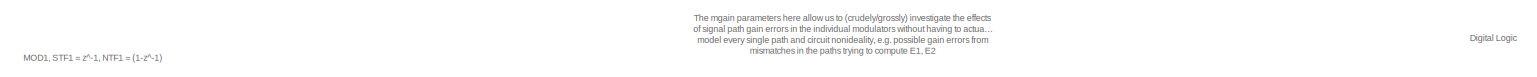
[diagram: root canvas - part 1/3, full width, top band]
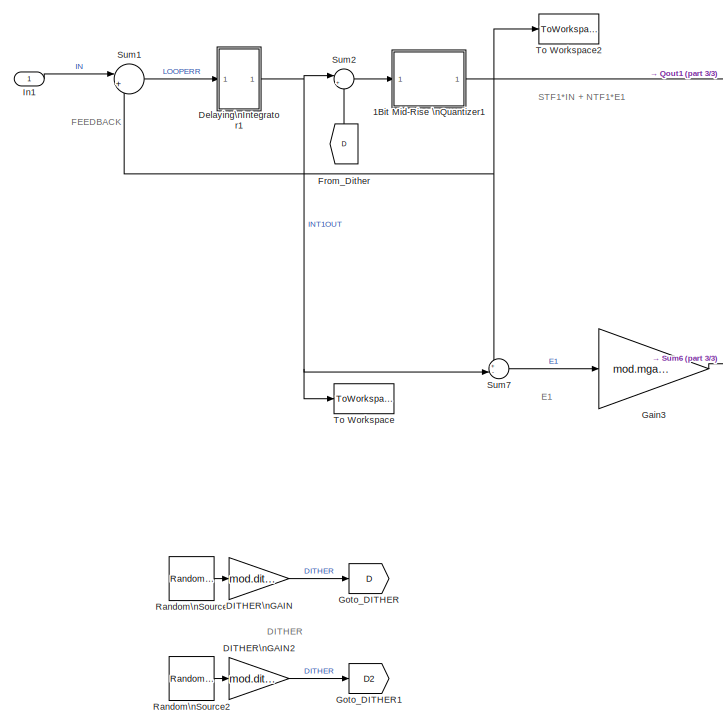
[diagram: root canvas - part 2/3, left side, full height]
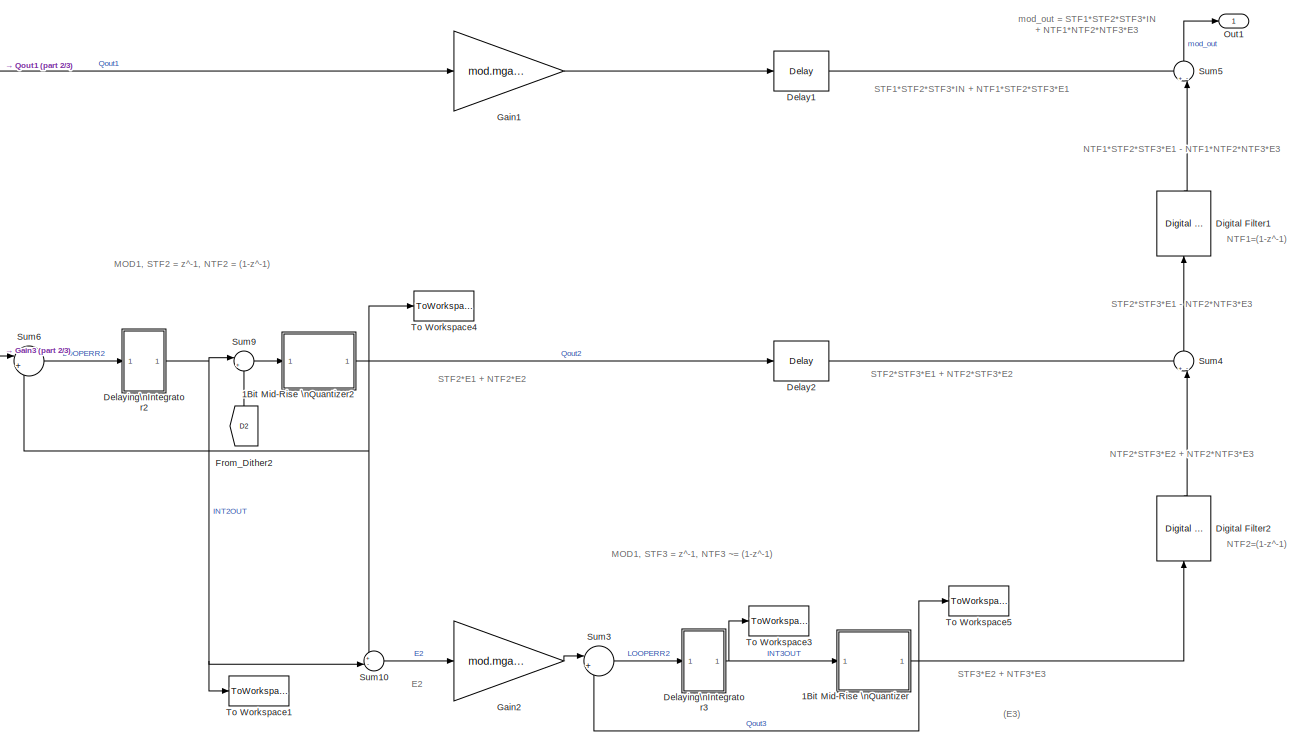
[diagram: root canvas - part 3/3, right side, full height]
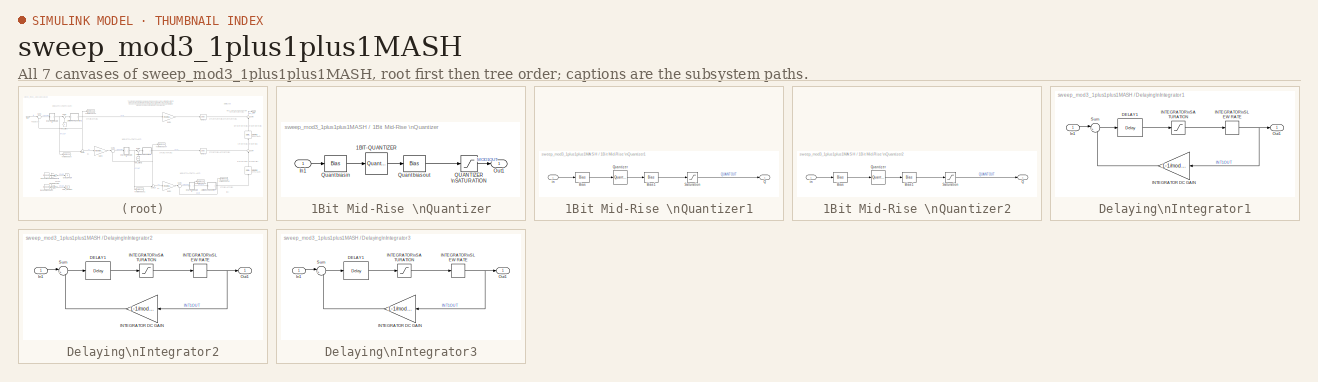
[diagram: thumbnail index - all 7 canvases of the model, root first then tree order]
MODEL sweep_mod3_1plus1plus1MASH
KIND model
BLOCK [SubSystem] 1Bit Mid-Rise \nQuantizer
  FunctionWithSeparateData = off
  MaskHideContents = off
  MinAlgLoopOccurrences = off
  Opaque = off
  Ports = [1, 1]
  PropExecContextOutsideSubsystem = off
  RTWSystemCode = Auto
  RequestExecContextInheritance = off
  SID = 311
BLOCK [Quantizer] 1Bit Mid-Rise \nQuantizer/1BIT-QUANTIZER
  AttributesFormatString = step = 2
  LinearizeAsGain = off
  QuantizationInterval = 2
  SID = 313
  SampleTime = 1/Fs
BLOCK [Inport] 1Bit Mid-Rise \nQuantizer/In1
  IconDisplay = Port number
  SID = 312
BLOCK [Outport] 1Bit Mid-Rise \nQuantizer/Out1
  IconDisplay = Port number
  SID = 317
BLOCK [Saturate] 1Bit Mid-Rise \nQuantizer/QUANTIZER \nSATURATION
  AttributesFormatString = Limit quantizer\\noutput
  InputPortMap = u0
  LowerLimit = -(mod.qsatout3)
  Ports = [1, 1]
  SID = 314
  UpperLimit = mod.qsatout3
BLOCK [Bias] 1Bit Mid-Rise \nQuantizer/Quant bias in
  AttributesFormatString = Need offset to give\\nMID-RISE quantiser
  Bias = 1
  SID = 315
  SaturateOnIntegerOverflow = off
BLOCK [Bias] 1Bit Mid-Rise \nQuantizer/Quant bias out
  AttributesFormatString = Shift outputs to\\n..., -2, 1, 1, ...
  Bias = -1
  SID = 316
  SaturateOnIntegerOverflow = off
BLOCK [SubSystem] 1Bit Mid-Rise \nQuantizer1
  FunctionWithSeparateData = off
  MaskHideContents = off
  MinAlgLoopOccurrences = off
  Opaque = off
  Ports = [1, 1]
  PropExecContextOutsideSubsystem = off
  RTWSystemCode = Auto
  RequestExecContextInheritance = off
  SID = 284
BLOCK [Bias] 1Bit Mid-Rise \nQuantizer1/Bias
  AttributesFormatString = Need offset to give\\nMID-RISE quantiser
  Bias = 1
  SID = 286
  SaturateOnIntegerOverflow = off
BLOCK [Bias] 1Bit Mid-Rise \nQuantizer1/Bias1
  Bias = -1
  SID = 287
  SaturateOnIntegerOverflow = off
BLOCK [Outport] 1Bit Mid-Rise \nQuantizer1/Q
  IconDisplay = Port number
  SID = 290
BLOCK [Quantizer] 1Bit Mid-Rise \nQuantizer1/Quantizer
  LinearizeAsGain = off
  QuantizationInterval = 2
  SID = 288
  SampleTime = 1/Fs
BLOCK [Saturate] 1Bit Mid-Rise \nQuantizer1/Saturation
  InputPortMap = u0
  LowerLimit = -(mod.qsatout1)
  Ports = [1, 1]
  SID = 289
  UpperLimit = mod.qsatout1
BLOCK [Inport] 1Bit Mid-Rise \nQuantizer1/in
  IconDisplay = Port number
  SID = 285
BLOCK [SubSystem] 1Bit Mid-Rise \nQuantizer2
  FunctionWithSeparateData = off
  MaskHideContents = off
  MinAlgLoopOccurrences = off
  Opaque = off
  Ports = [1, 1]
  PropExecContextOutsideSubsystem = off
  RTWSystemCode = Auto
  RequestExecContextInheritance = off
  SID = 291
BLOCK [Bias] 1Bit Mid-Rise \nQuantizer2/Bias
  AttributesFormatString = Need offset to give\\nMID-RISE quantiser
  Bias = 1
  SID = 293
  SaturateOnIntegerOverflow = off
BLOCK [Bias] 1Bit Mid-Rise \nQuantizer2/Bias1
  Bias = -1
  SID = 294
  SaturateOnIntegerOverflow = off
BLOCK [Outport] 1Bit Mid-Rise \nQuantizer2/Q
  IconDisplay = Port number
  SID = 297
BLOCK [Quantizer] 1Bit Mid-Rise \nQuantizer2/Quantizer
  LinearizeAsGain = off
  QuantizationInterval = 2
  SID = 295
  SampleTime = 1/Fs
BLOCK [Saturate] 1Bit Mid-Rise \nQuantizer2/Saturation
  InputPortMap = u0
  LowerLimit = -(mod.qsatout2)
  Ports = [1, 1]
  SID = 296
  UpperLimit = mod.qsatout2
BLOCK [Inport] 1Bit Mid-Rise \nQuantizer2/in
  IconDisplay = Port number
  SID = 292
BLOCK [Gain] DITHER\nGAIN
  Gain = mod.dither
  OutDataTypeStr = Inherit: Inherit via internal rule
  ParamDataTypeStr = Inherit: Inherit via internal rule
  SID = 244
  SampleTime = 1/Fs
  SaturateOnIntegerOverflow = off
BLOCK [Gain] DITHER\nGAIN2
  Gain = mod.dither1
  OutDataTypeStr = Inherit: Inherit via internal rule
  ParamDataTypeStr = Inherit: Inherit via internal rule
  SID = 245
  SampleTime = 1/Fs
  SaturateOnIntegerOverflow = off
BLOCK [Reference] Delay1  REF=dspsigops/Delay
  AttributesFormatString = STF2*STF3
  InputProcessing = Columns as channels (frame based)
  Ports = [1, 1]
  SID = 189
  SourceBlock = dspsigops/Delay
  SourceType = Delay
  UserData = DataTag0
  UserDataPersistent = on
  delay = 2
  dif_ic_for_ch = off
  dif_ic_for_dly = off
  dly_unit = Samples
  ic = 0
  ic_detail = off
  reset_popup = None
BLOCK [Reference] Delay2  REF=dspsigops/Delay
  AttributesFormatString = STF3
  InputProcessing = Columns as channels (frame based)
  Ports = [1, 1]
  SID = 184
  SourceBlock = dspsigops/Delay
  SourceType = Delay
  UserData = DataTag1
  UserDataPersistent = on
  delay = 1
  dif_ic_for_ch = off
  dif_ic_for_dly = off
  dly_unit = Samples
  ic = 0
  ic_detail = off
  reset_popup = None
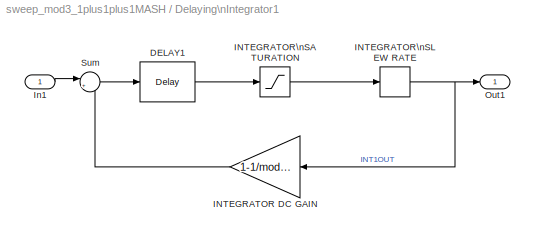
BLOCK [SubSystem] Delaying\nIntegrator1
  FunctionWithSeparateData = off
  MaskHideContents = off
  MinAlgLoopOccurrences = off
  Opaque = off
  Ports = [1, 1]
  PropExecContextOutsideSubsystem = off
  RTWSystemCode = Auto
  RequestExecContextInheritance = off
  SID = 252
BLOCK [Reference] Delaying\nIntegrator1/DELAY1  REF=dspsigops/Delay
  InputProcessing = Inherited (this choice will be removed - see release notes)
  Ports = [1, 1]
  SID = 254
  SourceBlock = dspsigops/Delay
  SourceType = Delay
  UserData = DataTag2
  UserDataPersistent = on
  delay = 1
  dif_ic_for_ch = off
  dif_ic_for_dly = off
  dly_unit = Samples
  ic = 0
  ic_detail = off
  reset_popup = None
BLOCK [Gain] Delaying\nIntegrator1/INTEGRATOR DC GAIN
  AttributesFormatString = Integrator leakage\\n(model finite integrator dc/LF\\ngain in analog modulators)
  Gain = 1-1/mod.igain1
  OutDataTypeStr = Inherit: Inherit via internal rule
  ParamDataTypeStr = Inherit: Inherit via internal rule
  SID = 257
  SaturateOnIntegerOverflow = off
BLOCK [Saturate] Delaying\nIntegrator1/INTEGRATOR\nSATURATION
  AttributesFormatString = Real integrators will have\\noutput swing limits (analog\\nsignal headroom or digital\\naccumulator min/max values)
  InputPortMap = u0
  LowerLimit = -(mod.isat1)
  Ports = [1, 1]
  SID = 255
  UpperLimit = mod.isat1
BLOCK [RateLimiter] Delaying\nIntegrator1/INTEGRATOR\nSLEW RATE
  AttributesFormatString = ...and\\nmay suffer from\\npoor slew rate
  FallingSlewLimit = -(mod.isr1)
  RisingSlewLimit = mod.isr1
  SID = 256
  SampleTimeMode = inherited
BLOCK [Inport] Delaying\nIntegrator1/In1
  IconDisplay = Port number
  SID = 253
BLOCK [Outport] Delaying\nIntegrator1/Out1
  IconDisplay = Port number
  SID = 259
BLOCK [Sum] Delaying\nIntegrator1/Sum
  AttributesFormatString = Integrator\\nsummer
  IconShape = round
  InputSameDT = off
  Inputs = |++
  OutDataTypeStr = Inherit: Inherit via internal rule
  Ports = [2, 1]
  SID = 258
  SaturateOnIntegerOverflow = off
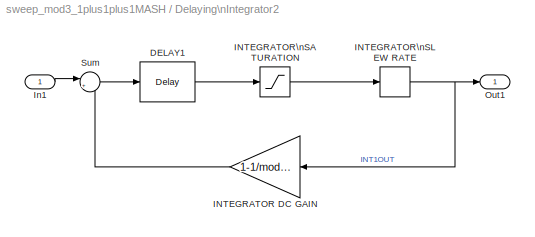
BLOCK [SubSystem] Delaying\nIntegrator2
  FunctionWithSeparateData = off
  MaskHideContents = off
  MinAlgLoopOccurrences = off
  Opaque = off
  Ports = [1, 1]
  PropExecContextOutsideSubsystem = off
  RTWSystemCode = Auto
  RequestExecContextInheritance = off
  SID = 262
BLOCK [Reference] Delaying\nIntegrator2/DELAY1  REF=dspsigops/Delay
  InputProcessing = Inherited (this choice will be removed - see release notes)
  Ports = [1, 1]
  SID = 264
  SourceBlock = dspsigops/Delay
  SourceType = Delay
  UserData = DataTag3
  UserDataPersistent = on
  delay = 1
  dif_ic_for_ch = off
  dif_ic_for_dly = off
  dly_unit = Samples
  ic = 0
  ic_detail = off
  reset_popup = None
BLOCK [Gain] Delaying\nIntegrator2/INTEGRATOR DC GAIN
  AttributesFormatString = Integrator leakage\\n(model finite integrator dc/LF\\ngain in analog modulators)
  Gain = 1-1/mod.igain2
  OutDataTypeStr = Inherit: Inherit via internal rule
  ParamDataTypeStr = Inherit: Inherit via internal rule
  SID = 267
  SaturateOnIntegerOverflow = off
BLOCK [Saturate] Delaying\nIntegrator2/INTEGRATOR\nSATURATION
  AttributesFormatString = Real integrators will have\\noutput swing limits (analog\\nsignal headroom or digital\\naccumulator min/max values)
  InputPortMap = u0
  LowerLimit = -(mod.isat2)
  Ports = [1, 1]
  SID = 265
  UpperLimit = mod.isat2
BLOCK [RateLimiter] Delaying\nIntegrator2/INTEGRATOR\nSLEW RATE
  AttributesFormatString = ...and\\nmay suffer from\\npoor slew rate
  FallingSlewLimit = -(mod.isr2)
  RisingSlewLimit = mod.isr2
  SID = 266
  SampleTimeMode = inherited
BLOCK [Inport] Delaying\nIntegrator2/In1
  IconDisplay = Port number
  SID = 263
BLOCK [Outport] Delaying\nIntegrator2/Out1
  IconDisplay = Port number
  SID = 269
BLOCK [Sum] Delaying\nIntegrator2/Sum
  AttributesFormatString = Integrator\\nsummer
  IconShape = round
  InputSameDT = off
  Inputs = |++
  OutDataTypeStr = Inherit: Inherit via internal rule
  Ports = [2, 1]
  SID = 268
  SaturateOnIntegerOverflow = off
BLOCK [SubSystem] Delaying\nIntegrator3
  FunctionWithSeparateData = off
  MaskHideContents = off
  MinAlgLoopOccurrences = off
  Opaque = off
  Ports = [1, 1]
  PropExecContextOutsideSubsystem = off
  RTWSystemCode = Auto
  RequestExecContextInheritance = off
  SID = 303
BLOCK [Reference] Delaying\nIntegrator3/DELAY1  REF=dspsigops/Delay
  InputProcessing = Inherited (this choice will be removed - see release notes)
  Ports = [1, 1]
  SID = 305
  SourceBlock = dspsigops/Delay
  SourceType = Delay
  UserData = DataTag4
  UserDataPersistent = on
  delay = 1
  dif_ic_for_ch = off
  dif_ic_for_dly = off
  dly_unit = Samples
  ic = 0
  ic_detail = off
  reset_popup = None
BLOCK [Gain] Delaying\nIntegrator3/INTEGRATOR DC GAIN
  AttributesFormatString = Integrator leakage\\n(model finite integrator dc/LF\\ngain in analog modulators)
  Gain = 1-1/mod.igain3
  OutDataTypeStr = Inherit: Inherit via internal rule
  ParamDataTypeStr = Inherit: Inherit via internal rule
  SID = 308
  SaturateOnIntegerOverflow = off
BLOCK [Saturate] Delaying\nIntegrator3/INTEGRATOR\nSATURATION
  AttributesFormatString = Real integrators will have\\noutput swing limits (analog\\nsignal headroom or digital\\naccumulator min/max values)
  InputPortMap = u0
  LowerLimit = -(mod.isat3)
  Ports = [1, 1]
  SID = 306
  UpperLimit = mod.isat3
BLOCK [RateLimiter] Delaying\nIntegrator3/INTEGRATOR\nSLEW RATE
  AttributesFormatString = ...and\\nmay suffer from\\npoor slew rate
  FallingSlewLimit = -(mod.isr3)
  RisingSlewLimit = mod.isr3
  SID = 307
  SampleTimeMode = inherited
BLOCK [Inport] Delaying\nIntegrator3/In1
  IconDisplay = Port number
  SID = 304
BLOCK [Outport] Delaying\nIntegrator3/Out1
  IconDisplay = Port number
  SID = 310
BLOCK [Sum] Delaying\nIntegrator3/Sum
  AttributesFormatString = Integrator\\nsummer
  IconShape = round
  InputSameDT = off
  Inputs = |++
  OutDataTypeStr = Inherit: Inherit via internal rule
  Ports = [2, 1]
  SID = 309
  SaturateOnIntegerOverflow = off
BLOCK [Reference] Digital Filter1  REF=dsparch4/Digital Filter
  AllPoleFiltStruct = Direct form
  BiQuadCoeffs = [1 0.3 0.4 1 0.1 0.2]
  CoeffSource = Specify via dialog
  DenCoeffs = [1 0.1]
  FIRFiltStruct = Direct form
  FiltPerSampPopup = One filter per frame
  FilterSource = Specify via dialog
  IC = 0
  ICden = 0
  ICnum = 0
  IIRFiltStruct = Direct form II transposed
  InputProcessing = Columns as channels (frame based)
  LatticeCoeffs = [0.2 0.4]
  LockScale = off
  NumCoeffs = [1 -1]
  Ports = [1, 1]
  SID = 190
  ScaleValues = 1
  SourceBlock = dsparch4/Digital Filter
  SourceType = Digital Filter
  TypePopup = FIR (all zeros)
  UserData = DataTag5
  UserDataPersistent = on
  accumFracLength = 30
  accumMode = Same as product output
  accumWordLength = 32
  additionalParams = off
  allowOverrides = on
  denIgnore = on
  dfiltObjectName = dfilt.dffir([1 2 1])
  firstCoeffFracLength = 15
  firstCoeffMode = Same word length as input
  firstCoeffWordLength = 16
  memoryFracLength = 15
  memoryMode = Same as accumulator
  memoryWordLength = 16
  multiplicandFracLength = 30
  multiplicandMode = Same as output
  multiplicandWordLength = 32
  outputFracLength = 15
  outputMode = Same as accumulator
  outputWordLength = 16
  overflowMode = off
  prodOutputFracLength = 30
  prodOutputMode = Same as input
  prodOutputWordLength = 32
  roundingMode = Floor
  scaleValueFracLength = 14
  secondCoeffFracLength = 15
  secondCoeffMode = Same as numerator
  secondCoeffWordLength = 16
  showAcc = off
  showCoeff = off
  showMem = off
  showMpy = off
  showOut = off
  stageIOMode = Same as input
  stageIOWordLength = 16
  stageInFracLength = 15
  stageOutFracLength = 15
  tapSumFracLength = 30
  tapSumMode = Same as input
  tapSumWordLength = 32
  thirdCoeffFracLength = 15
  thirdCoeffMode = Same as input
  thirdCoeffWordLength = 16
BLOCK [Reference] Digital Filter2  REF=dsparch4/Digital Filter
  AllPoleFiltStruct = Direct form
  BiQuadCoeffs = [1 0.3 0.4 1 0.1 0.2]
  CoeffSource = Specify via dialog
  DenCoeffs = [1 0.1]
  FIRFiltStruct = Direct form
  FiltPerSampPopup = One filter per frame
  FilterSource = Specify via dialog
  IC = 0
  ICden = 0
  ICnum = 0
  IIRFiltStruct = Direct form II transposed
  InputProcessing = Columns as channels (frame based)
  LatticeCoeffs = [0.2 0.4]
  LockScale = off
  NumCoeffs = [1 -1]
  Ports = [1, 1]
  SID = 183
  ScaleValues = 1
  SourceBlock = dsparch4/Digital Filter
  SourceType = Digital Filter
  TypePopup = FIR (all zeros)
  UserData = DataTag6
  UserDataPersistent = on
  accumFracLength = 30
  accumMode = Same as product output
  accumWordLength = 32
  additionalParams = off
  allowOverrides = on
  denIgnore = on
  dfiltObjectName = dfilt.dffir([1 2 1])
  firstCoeffFracLength = 15
  firstCoeffMode = Same word length as input
  firstCoeffWordLength = 16
  memoryFracLength = 15
  memoryMode = Same as accumulator
  memoryWordLength = 16
  multiplicandFracLength = 30
  multiplicandMode = Same as output
  multiplicandWordLength = 32
  outputFracLength = 15
  outputMode = Same as accumulator
  outputWordLength = 16
  overflowMode = off
  prodOutputFracLength = 30
  prodOutputMode = Same as input
  prodOutputWordLength = 32
  roundingMode = Floor
  scaleValueFracLength = 14
  secondCoeffFracLength = 15
  secondCoeffMode = Same as numerator
  secondCoeffWordLength = 16
  showAcc = off
  showCoeff = off
  showMem = off
  showMpy = off
  showOut = off
  stageIOMode = Same as input
  stageIOWordLength = 16
  stageInFracLength = 15
  stageOutFracLength = 15
  tapSumFracLength = 30
  tapSumMode = Same as input
  tapSumWordLength = 32
  thirdCoeffFracLength = 15
  thirdCoeffMode = Same as input
  thirdCoeffWordLength = 16
BLOCK [From] From_Dither
  GotoTag = D
  SID = 207
BLOCK [From] From_Dither2
  GotoTag = D2
  SID = 208
BLOCK [Gain] Gain1
  Gain = mod.mgain1
  OutDataTypeStr = Inherit: Inherit via internal rule
  ParamDataTypeStr = Inherit: Inherit via internal rule
  SID = 298
  SaturateOnIntegerOverflow = off
BLOCK [Gain] Gain2
  Gain = mod.mgain3
  OutDataTypeStr = Inherit: Inherit via internal rule
  ParamDataTypeStr = Inherit: Inherit via internal rule
  SID = 299
  SaturateOnIntegerOverflow = off
BLOCK [Gain] Gain3
  Gain = mod.mgain2
  OutDataTypeStr = Inherit: Inherit via internal rule
  ParamDataTypeStr = Inherit: Inherit via internal rule
  SID = 217
  SaturateOnIntegerOverflow = off
BLOCK [Goto] Goto_DITHER
  GotoTag = D
  SID = 246
BLOCK [Goto] Goto_DITHER1
  GotoTag = D2
  SID = 247
BLOCK [Inport] In1
  IconDisplay = Port number
  SID = 73
BLOCK [Outport] Out1
  IconDisplay = Port number
  SID = 74
BLOCK [Reference] Random\nSource  REF=dspsrcs4/Random\nSource
  CltLength = 12
  DataType = Double
  IsInherit = off
  MaxVal = 1
  MeanVal = 0
  MinVal = -1
  NormMethod = Ziggurat
  OutComplex = Real
  Ports = [0, 1]
  RepMode = Not repeatable
  SID = 248
  SampFrame = 1
  SampMode = Discrete
  SampTime = 1/Fs
  SourceBlock = dspsrcs4/Random\nSource
  SourceType = Random Source
  SrcType = Uniform
  UserData = DataTag7
  UserDataPersistent = on
  VarVal = 1
  rawSeed = 1
BLOCK [Reference] Random\nSource2  REF=dspsrcs4/Random\nSource
  CltLength = 12
  DataType = Double
  IsInherit = off
  MaxVal = 1
  MeanVal = 0
  MinVal = -1
  NormMethod = Ziggurat
  OutComplex = Real
  Ports = [0, 1]
  RepMode = Not repeatable
  SID = 249
  SampFrame = 1
  SampMode = Discrete
  SampTime = 1/Fs
  SourceBlock = dspsrcs4/Random\nSource
  SourceType = Random Source
  SrcType = Uniform
  UserData = DataTag8
  UserDataPersistent = on
  VarVal = 1
  rawSeed = 1
BLOCK [Sum] Sum1
  IconShape = round
  InputSameDT = off
  Inputs = |+-
  OutDataTypeStr = Inherit: Inherit via internal rule
  Ports = [2, 1]
  SID = 251
  SampleTime = 1/Fs
  SaturateOnIntegerOverflow = off
BLOCK [Sum] Sum10
  IconShape = round
  InputSameDT = off
  Inputs = +-|
  OutDataTypeStr = Inherit: Inherit via internal rule
  Ports = [2, 1]
  SID = 164
  SaturateOnIntegerOverflow = off
BLOCK [Sum] Sum2
  IconShape = round
  InputSameDT = off
  Inputs = |++
  OutDataTypeStr = Inherit: Inherit via internal rule
  Ports = [2, 1]
  SID = 137
  SaturateOnIntegerOverflow = off
BLOCK [Sum] Sum3
  IconShape = round
  InputSameDT = off
  Inputs = |+-
  OutDataTypeStr = Inherit: Inherit via internal rule
  Ports = [2, 1]
  SID = 301
  SaturateOnIntegerOverflow = off
BLOCK [Sum] Sum4
  IconShape = round
  InputSameDT = off
  Inputs = +-|
  OutDataTypeStr = Inherit: Inherit via internal rule
  Ports = [2, 1]
  SID = 185
  SaturateOnIntegerOverflow = off
BLOCK [Sum] Sum5
  IconShape = round
  InputSameDT = off
  Inputs = +-|
  OutDataTypeStr = Inherit: Inherit via internal rule
  Ports = [2, 1]
  SID = 191
  SampleTime = 1/Fs
  SaturateOnIntegerOverflow = off
BLOCK [Sum] Sum6
  IconShape = round
  InputSameDT = off
  Inputs = |+-
  OutDataTypeStr = Inherit: Inherit via internal rule
  Ports = [2, 1]
  SID = 261
  SaturateOnIntegerOverflow = off
BLOCK [Sum] Sum7
  IconShape = round
  InputSameDT = off
  Inputs = +-|
  OutDataTypeStr = Inherit: Inherit via internal rule
  Ports = [2, 1]
  SID = 146
  SaturateOnIntegerOverflow = off
BLOCK [Sum] Sum9
  IconShape = round
  InputSameDT = off
  Inputs = |++
  OutDataTypeStr = Inherit: Inherit via internal rule
  Ports = [2, 1]
  SID = 163
  SaturateOnIntegerOverflow = off
BLOCK [ToWorkspace] To Workspace
  MaxDataPoints = inf
  Ports = [1]
  SID = 219
  SampleTime = -1
  VariableName = INT1OUT
BLOCK [ToWorkspace] To Workspace1
  MaxDataPoints = inf
  Ports = [1]
  SID = 220
  SampleTime = -1
  VariableName = INT2OUT
BLOCK [ToWorkspace] To Workspace2
  MaxDataPoints = inf
  Ports = [1]
  SID = 224
  SampleTime = -1
  VariableName = Qout1
BLOCK [ToWorkspace] To Workspace3
  MaxDataPoints = inf
  Ports = [1]
  SID = 222
  SampleTime = -1
  VariableName = INT3OUT
BLOCK [ToWorkspace] To Workspace4
  MaxDataPoints = inf
  Ports = [1]
  SID = 300
  SampleTime = -1
  VariableName = Qout2
BLOCK [ToWorkspace] To Workspace5
  MaxDataPoints = inf
  Ports = [1]
  SID = 318
  SampleTime = -1
  VariableName = Qout3
ANNOTATION (root): DITHER \n\n\n\n\n\n\n\n\n\n
ANNOTATION (root): (E3)
ANNOTATION (root): Digital Logic
ANNOTATION (root): E1
ANNOTATION (root): E2
ANNOTATION (root): FEEDBACK
ANNOTATION (root): MOD1, STF1 = z^-1, NTF1 = (1-z^-1)
ANNOTATION (root): MOD1, STF2 = z^-1, NTF2 = (1-z^-1)
ANNOTATION (root): MOD1, STF3 = z^-1, NTF3 ~= (1-z^-1)
ANNOTATION (root): NTF1*STF2*STF3*E1 - NTF1*NTF2*NTF3*E3
ANNOTATION (root): NTF1=(1-z^-1)
ANNOTATION (root): NTF2*STF3*E2 + NTF2*NTF3*E3
ANNOTATION (root): NTF2=(1-z^-1)
ANNOTATION (root): STF1*IN + NTF1*E1
ANNOTATION (root): STF1*STF2*STF3*IN + NTF1*STF2*STF3*E1
ANNOTATION (root): STF2*E1 + NTF2*E2
ANNOTATION (root): STF2*STF3*E1 + NTF2*STF3*E2
ANNOTATION (root): STF2*STF3*E1 - NTF2*NTF3*E3
ANNOTATION (root): STF3*E2 + NTF3*E3
ANNOTATION (root): The mgain parameters here allow us to (crudely/grossly) investigate the effects \nof signal path gain errors in the individual modulators without having to actually \nmodel every single path and circuit nonideality, e.g. possible gain errors from \nmismatches in the paths trying to compute E1, E2
ANNOTATION (root): mod_out = STF1*STF2*STF3*IN\n + NTF1*NTF2*NTF3*E3
LINE 1Bit Mid-Rise \nQuantizer/1BIT-QUANTIZER:1 -> 1Bit Mid-Rise \nQuantizer/Quant bias out:1
LINE 1Bit Mid-Rise \nQuantizer/In1:1 -> 1Bit Mid-Rise \nQuantizer/Quant bias in:1
LINE 1Bit Mid-Rise \nQuantizer/QUANTIZER \nSATURATION:1 -> 1Bit Mid-Rise \nQuantizer/Out1:1
LINE 1Bit Mid-Rise \nQuantizer/Quant bias in:1 -> 1Bit Mid-Rise \nQuantizer/1BIT-QUANTIZER:1
LINE 1Bit Mid-Rise \nQuantizer/Quant bias out:1 -> 1Bit Mid-Rise \nQuantizer/QUANTIZER \nSATURATION:1
LINE 1Bit Mid-Rise \nQuantizer1/Bias1:1 -> 1Bit Mid-Rise \nQuantizer1/Saturation:1
LINE 1Bit Mid-Rise \nQuantizer1/Bias:1 -> 1Bit Mid-Rise \nQuantizer1/Quantizer:1
LINE 1Bit Mid-Rise \nQuantizer1/Quantizer:1 -> 1Bit Mid-Rise \nQuantizer1/Bias1:1
LINE 1Bit Mid-Rise \nQuantizer1/Saturation:1 -> 1Bit Mid-Rise \nQuantizer1/Q:1
LINE 1Bit Mid-Rise \nQuantizer1/in:1 -> 1Bit Mid-Rise \nQuantizer1/Bias:1
NET 1Bit Mid-Rise \nQuantizer1:1 -> Gain1:1, Sum1:2, Sum7:1, To Workspace2:1
LINE 1Bit Mid-Rise \nQuantizer2/Bias1:1 -> 1Bit Mid-Rise \nQuantizer2/Saturation:1
LINE 1Bit Mid-Rise \nQuantizer2/Bias:1 -> 1Bit Mid-Rise \nQuantizer2/Quantizer:1
LINE 1Bit Mid-Rise \nQuantizer2/Quantizer:1 -> 1Bit Mid-Rise \nQuantizer2/Bias1:1
LINE 1Bit Mid-Rise \nQuantizer2/Saturation:1 -> 1Bit Mid-Rise \nQuantizer2/Q:1
LINE 1Bit Mid-Rise \nQuantizer2/in:1 -> 1Bit Mid-Rise \nQuantizer2/Bias:1
NET 1Bit Mid-Rise \nQuantizer2:1 -> Delay2:1, Sum10:1, Sum6:2, To Workspace4:1
NET 1Bit Mid-Rise \nQuantizer:1 -> Digital Filter2:1, Sum3:2, To Workspace5:1
LINE DITHER\nGAIN2:1 -> Goto_DITHER1:1
LINE DITHER\nGAIN:1 -> Goto_DITHER:1
LINE Delay1:1 -> Sum5:1
LINE Delay2:1 -> Sum4:1
LINE Delaying\nIntegrator1/DELAY1:1 -> Delaying\nIntegrator1/INTEGRATOR\nSATURATION:1
LINE Delaying\nIntegrator1/INTEGRATOR DC GAIN:1 -> Delaying\nIntegrator1/Sum:2
LINE Delaying\nIntegrator1/INTEGRATOR\nSATURATION:1 -> Delaying\nIntegrator1/INTEGRATOR\nSLEW RATE:1
NET Delaying\nIntegrator1/INTEGRATOR\nSLEW RATE:1 -> Delaying\nIntegrator1/INTEGRATOR DC GAIN:1, Delaying\nIntegrator1/Out1:1
LINE Delaying\nIntegrator1/In1:1 -> Delaying\nIntegrator1/Sum:1
LINE Delaying\nIntegrator1/Sum:1 -> Delaying\nIntegrator1/DELAY1:1
NET Delaying\nIntegrator1:1 -> Sum2:1, Sum7:2, To Workspace:1
LINE Delaying\nIntegrator2/DELAY1:1 -> Delaying\nIntegrator2/INTEGRATOR\nSATURATION:1
LINE Delaying\nIntegrator2/INTEGRATOR DC GAIN:1 -> Delaying\nIntegrator2/Sum:2
LINE Delaying\nIntegrator2/INTEGRATOR\nSATURATION:1 -> Delaying\nIntegrator2/INTEGRATOR\nSLEW RATE:1
NET Delaying\nIntegrator2/INTEGRATOR\nSLEW RATE:1 -> Delaying\nIntegrator2/INTEGRATOR DC GAIN:1, Delaying\nIntegrator2/Out1:1
LINE Delaying\nIntegrator2/In1:1 -> Delaying\nIntegrator2/Sum:1
LINE Delaying\nIntegrator2/Sum:1 -> Delaying\nIntegrator2/DELAY1:1
NET Delaying\nIntegrator2:1 -> Sum10:2, Sum9:1, To Workspace1:1
LINE Delaying\nIntegrator3/DELAY1:1 -> Delaying\nIntegrator3/INTEGRATOR\nSATURATION:1
LINE Delaying\nIntegrator3/INTEGRATOR DC GAIN:1 -> Delaying\nIntegrator3/Sum:2
LINE Delaying\nIntegrator3/INTEGRATOR\nSATURATION:1 -> Delaying\nIntegrator3/INTEGRATOR\nSLEW RATE:1
NET Delaying\nIntegrator3/INTEGRATOR\nSLEW RATE:1 -> Delaying\nIntegrator3/INTEGRATOR DC GAIN:1, Delaying\nIntegrator3/Out1:1
LINE Delaying\nIntegrator3/In1:1 -> Delaying\nIntegrator3/Sum:1
LINE Delaying\nIntegrator3/Sum:1 -> Delaying\nIntegrator3/DELAY1:1
NET Delaying\nIntegrator3:1 -> 1Bit Mid-Rise \nQuantizer:1, To Workspace3:1
LINE Digital Filter1:1 -> Sum5:2
LINE Digital Filter2:1 -> Sum4:2
LINE From_Dither2:1 -> Sum9:2
LINE From_Dither:1 -> Sum2:2
LINE Gain1:1 -> Delay1:1
LINE Gain2:1 -> Sum3:1
LINE Gain3:1 -> Sum6:1
LINE In1:1 -> Sum1:1
LINE Random\nSource2:1 -> DITHER\nGAIN2:1
LINE Random\nSource:1 -> DITHER\nGAIN:1
LINE Sum10:1 -> Gain2:1
LINE Sum1:1 -> Delaying\nIntegrator1:1
LINE Sum2:1 -> 1Bit Mid-Rise \nQuantizer1:1
LINE Sum3:1 -> Delaying\nIntegrator3:1
LINE Sum4:1 -> Digital Filter1:1
LINE Sum5:1 -> Out1:1
LINE Sum6:1 -> Delaying\nIntegrator2:1
LINE Sum7:1 -> Gain3:1
LINE Sum9:1 -> 1Bit Mid-Rise \nQuantizer2:1
note: NET lines group one-source signal fan-out (src -> all destinations, sorted); 1:1 wires keep LINE
